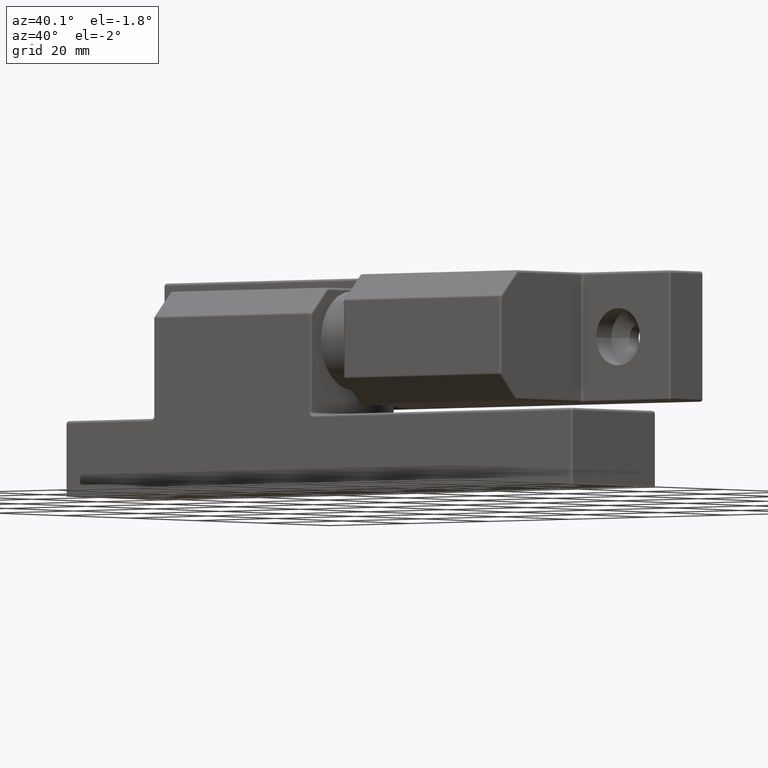
[diagram: clean part render]
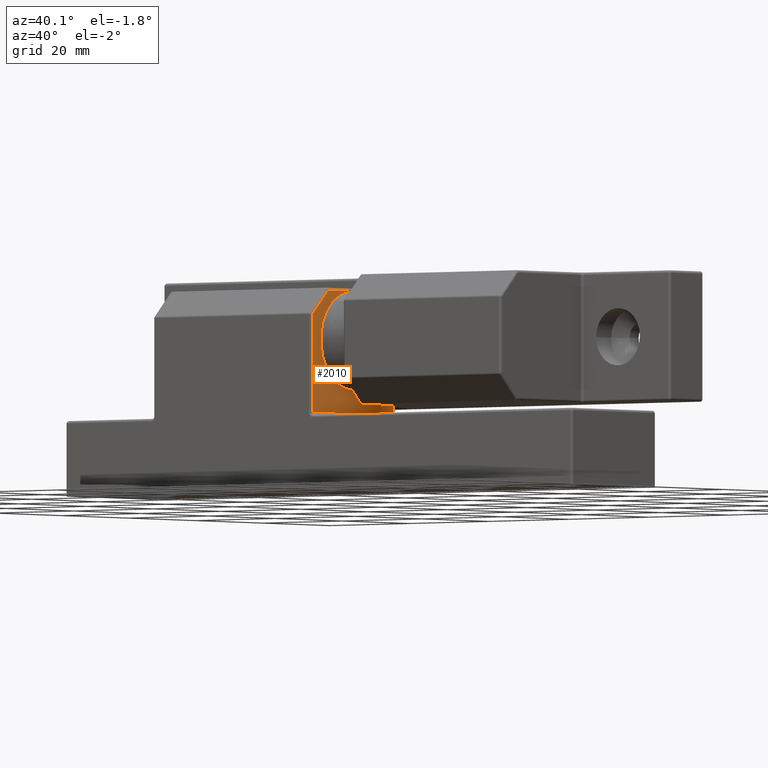
[diagram: same view with one face highlighted and labeled with its STEP entity id]
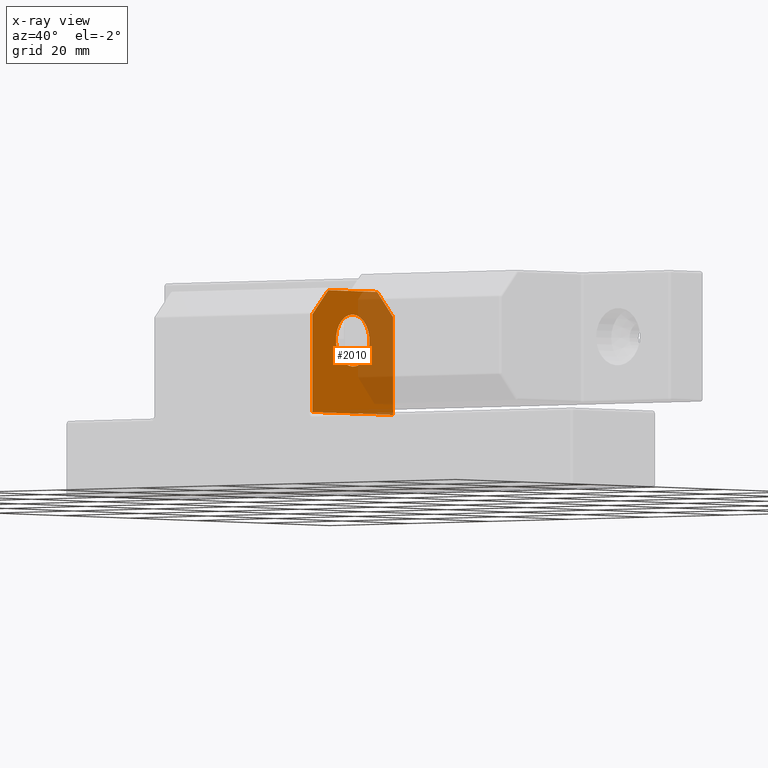
[diagram: x-ray of the same camera — body ghosted, the highlighted face saturated]
A machine part, auxiliary view. The second image highlights one B-rep face of the part: STEP entity #2010.
The next image is the same camera in x-ray: the body ghosted, the highlighted face saturated — about 39% of this face is hidden behind the body in this view.
In plain terms, the highlighted planar face has unit normal (1, -0, -0).
Its self-contained STEP definition (entity closure, byte-faithful):
#56=FACE_BOUND('',#646,.T.);
#108=PLANE('',#2228);
#154=LINE('',#3255,#266);
#163=LINE('',#3310,#275);
#172=LINE('',#3354,#284);
#174=LINE('',#3357,#286);
#182=LINE('',#3369,#294);
#192=LINE('',#3384,#304);
#266=VECTOR('',#2522,18.7928932188135);
#275=VECTOR('',#2585,24.);
#284=VECTOR('',#2638,18.7928932188135);
#286=VECTOR('',#2642,6.65685424949239);
#294=VECTOR('',#2658,14.5857864376269);
#304=VECTOR('',#2678,6.65685424949235);
#489=FACE_OUTER_BOUND('',#645,.T.);
#645=EDGE_LOOP('',(#1585,#1586,#1587,#1588,#1589,#1590));
#646=EDGE_LOOP('',(#1591));
#859=CIRCLE('',#2229,5.);
#962=VERTEX_POINT('',#3194);
#973=VERTEX_POINT('',#3221);
#981=VERTEX_POINT('',#3244);
#997=VERTEX_POINT('',#3291);
#1002=VERTEX_POINT('',#3302);
#1011=VERTEX_POINT('',#3332);
#1023=VERTEX_POINT('',#3412);
#1159=EDGE_CURVE('',#962,#981,#154,.T.);
#1186=EDGE_CURVE('',#981,#1002,#163,.T.);
#1208=EDGE_CURVE('',#1002,#1011,#172,.T.);
#1210=EDGE_CURVE('',#1011,#997,#174,.T.);
#1218=EDGE_CURVE('',#997,#973,#182,.T.);
#1228=EDGE_CURVE('',#973,#962,#192,.T.);
#1243=EDGE_CURVE('',#1023,#1023,#859,.T.);
#1585=ORIENTED_EDGE('',*,*,#1159,.F.);
#1586=ORIENTED_EDGE('',*,*,#1228,.F.);
#1587=ORIENTED_EDGE('',*,*,#1218,.F.);
#1588=ORIENTED_EDGE('',*,*,#1210,.F.);
#1589=ORIENTED_EDGE('',*,*,#1208,.F.);
#1590=ORIENTED_EDGE('',*,*,#1186,.F.);
#1591=ORIENTED_EDGE('',*,*,#1243,.T.);
#2010=ADVANCED_FACE('',(#489,#56),#108,.T.);
#2228=AXIS2_PLACEMENT_3D('',#3411,#2710,#2711);
#2229=AXIS2_PLACEMENT_3D('',#3413,#2712,#2713);
#2522=DIRECTION('',(0.,0.,-1.));
#2585=DIRECTION('',(3.5527136788005E-16,-1.,0.));
#2638=DIRECTION('',(0.,0.,1.));
#2642=DIRECTION('',(-2.51214793389405E-16,0.707106781186549,0.707106781186547));
#2658=DIRECTION('',(-3.5527136788005E-16,1.,0.));
#2678=DIRECTION('',(-2.51214793389404E-16,0.707106781186548,-0.707106781186547));
#2710=DIRECTION('center_axis',(1.,3.5527136788005E-16,0.));
#2711=DIRECTION('ref_axis',(0.,0.,-1.));
#2712=DIRECTION('center_axis',(-1.,-3.5527136788005E-16,0.));
#2713=DIRECTION('ref_axis',(0.,0.,1.));
#3194=CARTESIAN_POINT('',(-1.99999999999999,12.,33.7928932188135));
#3221=CARTESIAN_POINT('',(-1.99999999999999,7.29289321881347,38.5));
#3244=CARTESIAN_POINT('',(-1.99999999999999,12.,15.));
#3255=CARTESIAN_POINT('',(-1.99999999999999,12.,12.9341996193842));
#3291=CARTESIAN_POINT('',(-1.99999999999998,-7.29289321881343,38.5));
#3302=CARTESIAN_POINT('',(-1.99999999999998,-12.,15.));
#3310=CARTESIAN_POINT('',(-1.99999999999998,8.50123213251844E-15,15.));
#3332=CARTESIAN_POINT('',(-1.99999999999998,-12.,33.7928932188135));
#3354=CARTESIAN_POINT('',(-1.99999999999998,-12.,12.9341996193842));
#3357=CARTESIAN_POINT('',(-1.99999999999998,-8.55434679971462,37.2385464190988));
#3369=CARTESIAN_POINT('',(-1.99999999999999,3.75000000000002,38.5));
#3384=CARTESIAN_POINT('',(-1.99999999999999,11.0543467997147,34.7385464190988));
#3411=CARTESIAN_POINT('Origin',(-1.99999999999998,1.99334530500473E-14,
25.8683992387683));
#3412=CARTESIAN_POINT('',(-1.99999999999998,-1.83758917935762E-14,24.));
#3413=CARTESIAN_POINT('Origin',(-1.99999999999998,-1.77635683940025E-14,
29.));